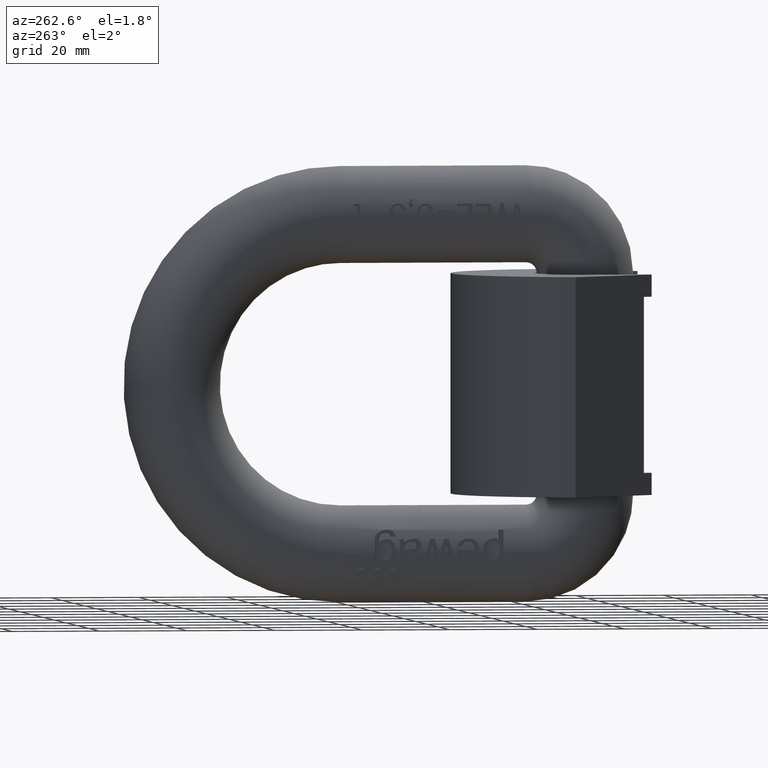
[diagram: clean part render]
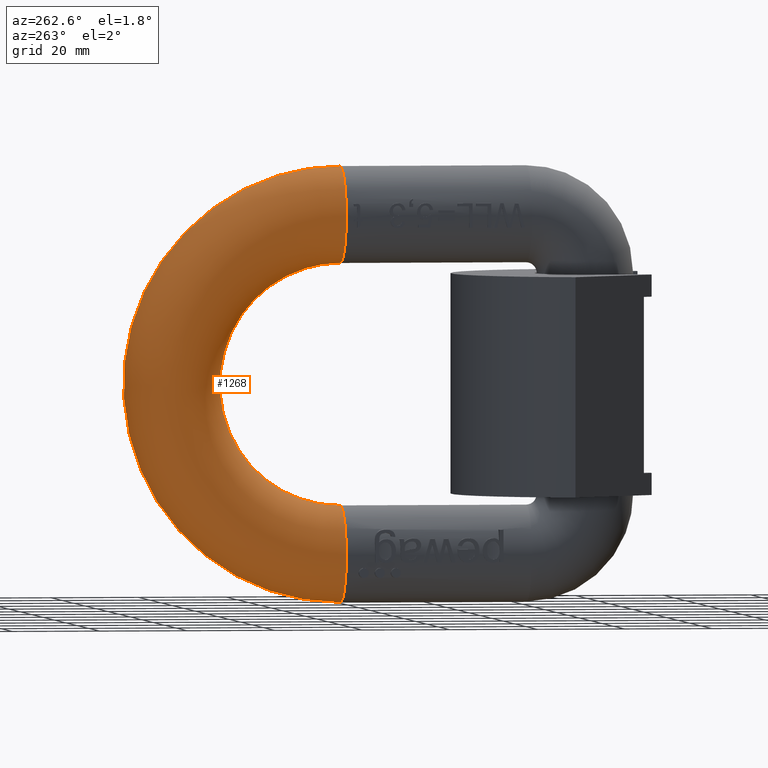
[diagram: same view with one face highlighted and labeled with its STEP entity id]
A machine part, auxiliary view. The second image highlights one B-rep face of the part: STEP entity #1268.
In plain terms, the highlighted toroidal blend (fillet) surface has major radius 38.5 mm and minor (blend) radius 11 mm.
Its self-contained STEP definition (entity closure, byte-faithful):
#196=TOROIDAL_SURFACE('',#7720,38.5,11.);
#979=FACE_BOUND('',#2122,.T.);
#980=FACE_BOUND('',#2123,.T.);
#1268=ADVANCED_FACE('',(#979,#980),#196,.T.);
#2122=EDGE_LOOP('',(#2996));
#2123=EDGE_LOOP('',(#2997));
#2526=CIRCLE('',#7613,11.);
#2565=CIRCLE('',#7698,11.);
#2996=ORIENTED_EDGE('',*,*,#5745,.T.);
#2997=ORIENTED_EDGE('',*,*,#5498,.F.);
#4760=VERTEX_POINT('',#9367);
#5007=VERTEX_POINT('',#11399);
#5498=EDGE_CURVE('',#4760,#4760,#2526,.T.);
#5745=EDGE_CURVE('',#5007,#5007,#2565,.T.);
#7613=AXIS2_PLACEMENT_3D('',#9366,#8033,#8034);
#7698=AXIS2_PLACEMENT_3D('',#11398,#8259,#8260);
#7720=AXIS2_PLACEMENT_3D('',#12183,#8313,#8314);
#8033=DIRECTION('',(0.,-1.,1.671865260612E-16));
#8034=DIRECTION('',(0.,0.,-1.));
#8259=DIRECTION('',(0.,1.,3.50799183265404E-15));
#8260=DIRECTION('',(0.,-3.78485122031303E-15,1.));
#8313=DIRECTION('',(1.,0.,0.));
#8314=DIRECTION('',(0.,0.,-1.));
#9366=CARTESIAN_POINT('',(0.,69.5,-38.5));
#9367=CARTESIAN_POINT('',(0.,69.5,-49.5));
#11398=CARTESIAN_POINT('',(0.,69.5,38.5));
#11399=CARTESIAN_POINT('',(0.,69.4999999999999,49.5));
#12183=CARTESIAN_POINT('',(0.,69.5,0.));